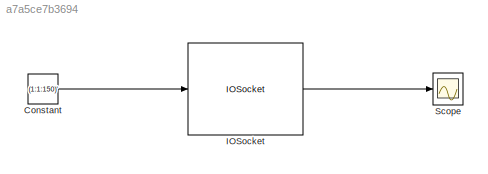
MODEL mdl_a7a5ce7b3694
KIND model
CONFIG AbsTol = auto
CONFIG EnableMultiTasking = on
CONFIG FixedStep = auto
CONFIG MaxStep = auto
CONFIG MinStep = auto
CONFIG RelTol = 1e-3
CONFIG SampleTimeConstraint = Unconstrained
CONFIG SolverName = FixedStepDiscrete
CONFIG StartTime = 0.0
CONFIG StopTime = Inf
BLOCK [Constant] Constant
  SampleTime = 0.005
  Value = (1:1:150)'
BLOCK [Reference] IOSocket  REF=rpi_blkst/IOSocket  (lib defined in mdl_5f9edbe601a8, slx_830431f926a7)
  SourceBlock = rpi_blkst/IOSocket
  SourceProductName = RPI Blockset
  SourceType = IOSocket
BLOCK [Scope] Scope
  Floating = off
  NumInputPorts = 1
  ScopeSpecificationString = Simulink.scopes.TimeScopeBlockCfg('CurrentConfiguration', extmgr.ConfigurationSet(extmgr.Configuration('Core','General UI',true),extmgr.Configuration('Core','Source UI',true),extmgr.Configuration('Sources','WiredSimulink',true,'DataLoggingSaveFormat','StructureWithTime','DataLoggingLimitDataPoints',true,'DataLoggingDecimation','1','DataLoggingDecimateData',true),extmgr.Configuration('Visuals','Tim...<+1682ch>
LINE Constant:1 -> IOSocket:1
LINE IOSocket:1 -> Scope:1
